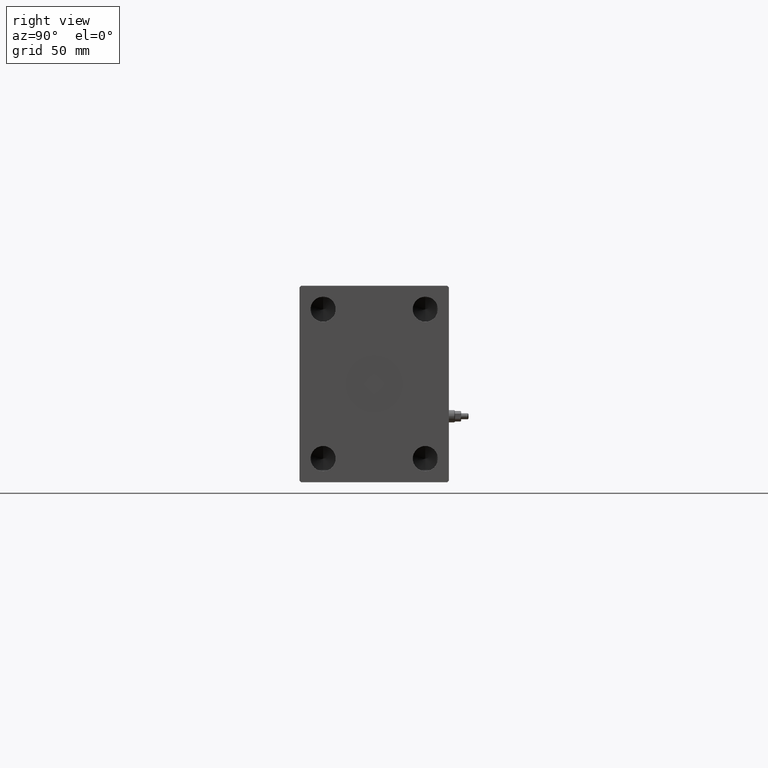
[diagram: clean part render]
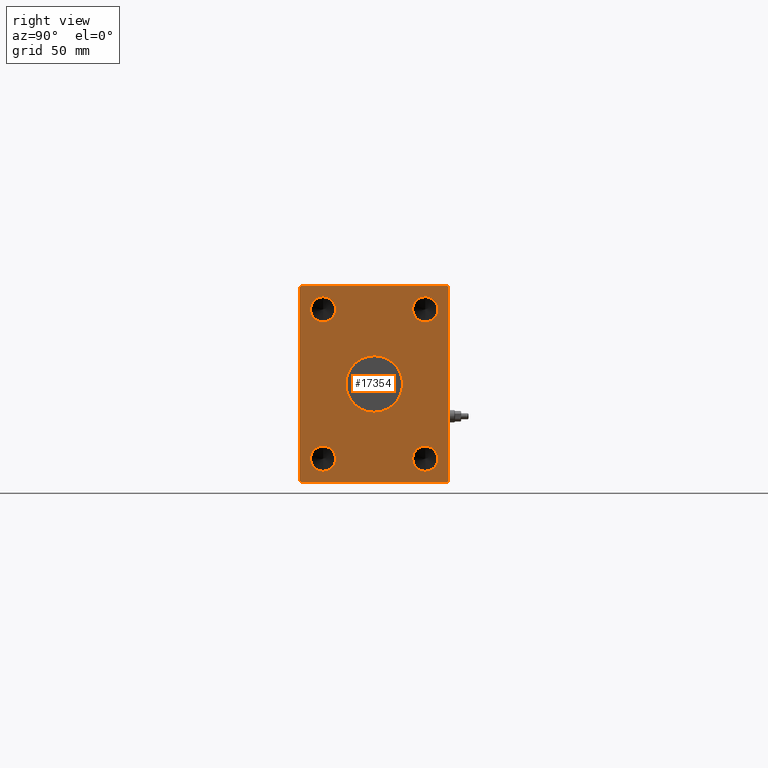
[diagram: same view with one face highlighted and labeled with its STEP entity id]
A machine part, right view. The second image highlights one B-rep face of the part: STEP entity #17354.
In plain terms, the highlighted planar face has unit normal (1, 0, 0).
Its self-contained STEP definition (entity closure, byte-faithful):
#406 = CARTESIAN_POINT ( 'NONE',  ( 381.0000000000000000, 0.000000000000000000, 0.000000000000000000 ) ) ;
#691 = AXIS2_PLACEMENT_3D ( 'NONE', #406, #855, #14365 ) ;
#855 = DIRECTION ( 'NONE',  ( 1.000000000000000000, 0.000000000000000000, 0.000000000000000000 ) ) ;
#1076 = FACE_BOUND ( 'NONE', #23183, .T. ) ;
#1883 = DIRECTION ( 'NONE',  ( 0.000000000000000000, -1.128275431529630729E-16, 1.000000000000000000 ) ) ;
#1987 = ORIENTED_EDGE ( 'NONE', *, *, #13164, .F. ) ;
#2476 = EDGE_CURVE ( 'NONE', #5456, #39823, #37956, .T. ) ;
#2741 = ORIENTED_EDGE ( 'NONE', *, *, #40623, .T. ) ;
#2958 = LINE ( 'NONE', #10051, #43970 ) ;
#3395 = LINE ( 'NONE', #7272, #21130 ) ;
#3420 = DIRECTION ( 'NONE',  ( 1.000000000000000000, 0.000000000000000000, 0.000000000000000000 ) ) ;
#3663 = EDGE_CURVE ( 'NONE', #21795, #34336, #16836, .T. ) ;
#3899 = DIRECTION ( 'NONE',  ( 1.000000000000000000, -0.000000000000000000, -0.000000000000000000 ) ) ;
#4798 = VERTEX_POINT ( 'NONE', #29807 ) ;
#5390 = CARTESIAN_POINT ( 'NONE',  ( 381.0000000000000000, 47.50000000000001421, -61.50000000000001421 ) ) ;
#5456 = VERTEX_POINT ( 'NONE', #12691 ) ;
#5556 = CARTESIAN_POINT ( 'NONE',  ( 381.0000000000000000, 32.50000000000000000, 55.49999999999999289 ) ) ;
#5738 = CIRCLE ( 'NONE', #35783, 7.999999999999992895 ) ;
#6571 = CARTESIAN_POINT ( 'NONE',  ( 381.0000000000000000, -47.49999999999999289, -61.50000000000001421 ) ) ;
#6992 = VERTEX_POINT ( 'NONE', #10488 ) ;
#7145 = CARTESIAN_POINT ( 'NONE',  ( 381.0000000000000000, 32.50000000000000000, 47.50000000000000000 ) ) ;
#7272 = CARTESIAN_POINT ( 'NONE',  ( 381.0000000000000000, 46.50000000000000000, 62.49999999999998579 ) ) ;
#7848 = VERTEX_POINT ( 'NONE', #37698 ) ;
#7942 = CARTESIAN_POINT ( 'NONE',  ( 381.0000000000000000, -47.50000000000001421, 61.49999999999997868 ) ) ;
#8716 = AXIS2_PLACEMENT_3D ( 'NONE', #21110, #35086, #43319 ) ;
#8968 = DIRECTION ( 'NONE',  ( 0.000000000000000000, 0.000000000000000000, -1.000000000000000000 ) ) ;
#9057 = DIRECTION ( 'NONE',  ( 0.000000000000000000, 0.000000000000000000, -1.000000000000000000 ) ) ;
#9275 = AXIS2_PLACEMENT_3D ( 'NONE', #27541, #35090, #28213 ) ;
#9647 = ORIENTED_EDGE ( 'NONE', *, *, #25160, .F. ) ;
#9679 = ORIENTED_EDGE ( 'NONE', *, *, #2476, .T. ) ;
#10051 = CARTESIAN_POINT ( 'NONE',  ( 381.0000000000000000, 46.50000000000000000, -62.50000000000000000 ) ) ;
#10110 = CARTESIAN_POINT ( 'NONE',  ( 381.0000000000000000, -47.50000000000001421, 61.49999999999997868 ) ) ;
#10488 = CARTESIAN_POINT ( 'NONE',  ( 381.0000000000000000, -32.50000000000000000, 39.50000000000000711 ) ) ;
#10498 = VERTEX_POINT ( 'NONE', #14631 ) ;
#10531 = CARTESIAN_POINT ( 'NONE',  ( 381.0000000000000000, -46.50000000000000000, -62.50000000000001421 ) ) ;
#10810 = ORIENTED_EDGE ( 'NONE', *, *, #18203, .F. ) ;
#10916 = CARTESIAN_POINT ( 'NONE',  ( 381.0000000000000000, 0.000000000000000000, 0.000000000000000000 ) ) ;
#11045 = VERTEX_POINT ( 'NONE', #23382 ) ;
#11156 = DIRECTION ( 'NONE',  ( 0.000000000000000000, 1.692413147294445970E-16, -1.000000000000000000 ) ) ;
#12035 = EDGE_CURVE ( 'NONE', #36279, #23219, #28422, .T. ) ;
#12381 = VERTEX_POINT ( 'NONE', #21261 ) ;
#12600 = DIRECTION ( 'NONE',  ( 0.000000000000000000, 0.7071067811865574537, 0.7071067811865376918 ) ) ;
#12691 = CARTESIAN_POINT ( 'NONE',  ( 381.0000000000000000, -47.49999999999999289, -61.50000000000001421 ) ) ;
#12789 = CIRCLE ( 'NONE', #38391, 7.999999999999992895 ) ;
#12828 = VERTEX_POINT ( 'NONE', #15268 ) ;
#13164 = EDGE_CURVE ( 'NONE', #11045, #12381, #5738, .T. ) ;
#13183 = DIRECTION ( 'NONE',  ( 1.000000000000000000, -0.000000000000000000, -0.000000000000000000 ) ) ;
#13763 = DIRECTION ( 'NONE',  ( 0.000000000000000000, 0.000000000000000000, -1.000000000000000000 ) ) ;
#13795 = DIRECTION ( 'NONE',  ( 0.000000000000000000, 0.000000000000000000, -1.000000000000000000 ) ) ;
#13828 = DIRECTION ( 'NONE',  ( 0.000000000000000000, 0.000000000000000000, -1.000000000000000000 ) ) ;
#14249 = EDGE_CURVE ( 'NONE', #33059, #10498, #43374, .T. ) ;
#14365 = DIRECTION ( 'NONE',  ( 0.000000000000000000, 0.000000000000000000, -1.000000000000000000 ) ) ;
#14587 = FACE_OUTER_BOUND ( 'NONE', #26180, .T. ) ;
#14631 = CARTESIAN_POINT ( 'NONE',  ( 381.0000000000000000, 47.50000000000000000, 61.49999999999998579 ) ) ;
#15219 = AXIS2_PLACEMENT_3D ( 'NONE', #34397, #3899, #13763 ) ;
#15268 = CARTESIAN_POINT ( 'NONE',  ( 381.0000000000000000, -32.50000000000000000, 55.49999999999999289 ) ) ;
#15642 = CIRCLE ( 'NONE', #41999, 7.999999999999992895 ) ;
#15703 = VERTEX_POINT ( 'NONE', #5556 ) ;
#15721 = EDGE_LOOP ( 'NONE', ( #40633, #33701 ) ) ;
#15952 = ORIENTED_EDGE ( 'NONE', *, *, #14249, .T. ) ;
#16108 = VECTOR ( 'NONE', #28854, 1000.000000000000000 ) ;
#16145 = CARTESIAN_POINT ( 'NONE',  ( 381.0000000000000000, 32.50000000000000000, 47.50000000000000000 ) ) ;
#16836 = LINE ( 'NONE', #41590, #25974 ) ;
#17006 = DIRECTION ( 'NONE',  ( 0.000000000000000000, 0.000000000000000000, -1.000000000000000000 ) ) ;
#17174 = VECTOR ( 'NONE', #23308, 1000.000000000000114 ) ;
#17332 = EDGE_CURVE ( 'NONE', #7848, #21795, #3395, .T. ) ;
#17354 = ADVANCED_FACE ( 'NONE', ( #35674, #35445, #29252, #1076, #39096, #14587 ), #18918, .T. ) ;
#18174 = EDGE_CURVE ( 'NONE', #34336, #5456, #32244, .T. ) ;
#18203 = EDGE_CURVE ( 'NONE', #4798, #43214, #24065, .T. ) ;
#18499 = AXIS2_PLACEMENT_3D ( 'NONE', #24252, #3420, #38226 ) ;
#18669 = EDGE_CURVE ( 'NONE', #15703, #36090, #21192, .T. ) ;
#18918 = PLANE ( 'NONE',  #691 ) ;
#19258 = DIRECTION ( 'NONE',  ( 1.000000000000000000, -0.000000000000000000, -0.000000000000000000 ) ) ;
#19324 = CARTESIAN_POINT ( 'NONE',  ( 381.0000000000000000, 32.50000000000000000, 39.50000000000000711 ) ) ;
#19664 = LINE ( 'NONE', #22667, #40022 ) ;
#20204 = CARTESIAN_POINT ( 'NONE',  ( 381.0000000000000000, -46.50000000000001421, 62.49999999999997868 ) ) ;
#20250 = CARTESIAN_POINT ( 'NONE',  ( 381.0000000000000000, 46.50000000000000000, -62.50000000000000000 ) ) ;
#20889 = ORIENTED_EDGE ( 'NONE', *, *, #26208, .F. ) ;
#21110 = CARTESIAN_POINT ( 'NONE',  ( 381.0000000000000000, -32.50000000000000000, -47.50000000000000711 ) ) ;
#21130 = VECTOR ( 'NONE', #41880, 1000.000000000000000 ) ;
#21192 = CIRCLE ( 'NONE', #24854, 7.999999999999992895 ) ;
#21261 = CARTESIAN_POINT ( 'NONE',  ( 381.0000000000000000, 32.50000000000000000, -55.49999999999999289 ) ) ;
#21795 = VERTEX_POINT ( 'NONE', #20204 ) ;
#22667 = CARTESIAN_POINT ( 'NONE',  ( 381.0000000000000000, 47.50000000000000000, 61.49999999999998579 ) ) ;
#22906 = CARTESIAN_POINT ( 'NONE',  ( 381.0000000000000000, 0.000000000000000000, -18.00000000000000000 ) ) ;
#23183 = EDGE_LOOP ( 'NONE', ( #41759, #1987 ) ) ;
#23205 = DIRECTION ( 'NONE',  ( 1.000000000000000000, -0.000000000000000000, -0.000000000000000000 ) ) ;
#23219 = VERTEX_POINT ( 'NONE', #26153 ) ;
#23308 = DIRECTION ( 'NONE',  ( 0.000000000000000000, 0.7071067811865451302, -0.7071067811865500152 ) ) ;
#23382 = CARTESIAN_POINT ( 'NONE',  ( 381.0000000000000000, 32.50000000000000000, -39.50000000000000711 ) ) ;
#24065 = CIRCLE ( 'NONE', #31409, 18.00000000000000000 ) ;
#24252 = CARTESIAN_POINT ( 'NONE',  ( 381.0000000000000000, 0.000000000000000000, 0.000000000000000000 ) ) ;
#24854 = AXIS2_PLACEMENT_3D ( 'NONE', #16145, #13183, #9057 ) ;
#25008 = ORIENTED_EDGE ( 'NONE', *, *, #42208, .T. ) ;
#25160 = EDGE_CURVE ( 'NONE', #43214, #4798, #28742, .T. ) ;
#25974 = VECTOR ( 'NONE', #28065, 1000.000000000000114 ) ;
#26153 = CARTESIAN_POINT ( 'NONE',  ( 381.0000000000000000, -32.50000000000000000, -39.50000000000000711 ) ) ;
#26180 = EDGE_LOOP ( 'NONE', ( #38688, #31907, #39983, #37101, #9679, #2741, #25008, #15952 ) ) ;
#26208 = EDGE_CURVE ( 'NONE', #6992, #12828, #12789, .T. ) ;
#27442 = AXIS2_PLACEMENT_3D ( 'NONE', #7145, #38077, #13795 ) ;
#27541 = CARTESIAN_POINT ( 'NONE',  ( 381.0000000000000000, -32.50000000000000000, 47.50000000000000000 ) ) ;
#27585 = DIRECTION ( 'NONE',  ( 1.000000000000000000, -0.000000000000000000, -0.000000000000000000 ) ) ;
#27888 = DIRECTION ( 'NONE',  ( 1.000000000000000000, 0.000000000000000000, 0.000000000000000000 ) ) ;
#28021 = ORIENTED_EDGE ( 'NONE', *, *, #35294, .F. ) ;
#28025 = EDGE_CURVE ( 'NONE', #12381, #11045, #15642, .T. ) ;
#28065 = DIRECTION ( 'NONE',  ( 0.000000000000000000, -0.7071067811865474617, -0.7071067811865474617 ) ) ;
#28213 = DIRECTION ( 'NONE',  ( 0.000000000000000000, 0.000000000000000000, -1.000000000000000000 ) ) ;
#28422 = CIRCLE ( 'NONE', #15219, 8.000000000000000000 ) ;
#28742 = CIRCLE ( 'NONE', #18499, 18.00000000000000000 ) ;
#28854 = DIRECTION ( 'NONE',  ( 0.000000000000000000, 1.000000000000000000, 1.492235248152092278E-16 ) ) ;
#28997 = EDGE_LOOP ( 'NONE', ( #9647, #10810 ) ) ;
#29252 = FACE_BOUND ( 'NONE', #40845, .T. ) ;
#29807 = CARTESIAN_POINT ( 'NONE',  ( 381.0000000000000000, 2.204364238465235428E-15, 18.00000000000000000 ) ) ;
#31409 = AXIS2_PLACEMENT_3D ( 'NONE', #10916, #27888, #31780 ) ;
#31413 = VECTOR ( 'NONE', #1883, 1000.000000000000000 ) ;
#31500 = EDGE_CURVE ( 'NONE', #36090, #15703, #39129, .T. ) ;
#31780 = DIRECTION ( 'NONE',  ( 0.000000000000000000, 0.000000000000000000, -1.000000000000000000 ) ) ;
#31907 = ORIENTED_EDGE ( 'NONE', *, *, #17332, .T. ) ;
#32129 = CIRCLE ( 'NONE', #8716, 8.000000000000000000 ) ;
#32244 = LINE ( 'NONE', #7942, #35780 ) ;
#32423 = ORIENTED_EDGE ( 'NONE', *, *, #12035, .F. ) ;
#33059 = VERTEX_POINT ( 'NONE', #5390 ) ;
#33701 = ORIENTED_EDGE ( 'NONE', *, *, #18669, .F. ) ;
#33709 = EDGE_LOOP ( 'NONE', ( #20889, #28021 ) ) ;
#33752 = CARTESIAN_POINT ( 'NONE',  ( 381.0000000000000000, -32.50000000000000000, 47.50000000000000000 ) ) ;
#34336 = VERTEX_POINT ( 'NONE', #10110 ) ;
#34397 = CARTESIAN_POINT ( 'NONE',  ( 381.0000000000000000, -32.50000000000000000, -47.50000000000000711 ) ) ;
#35086 = DIRECTION ( 'NONE',  ( 1.000000000000000000, -0.000000000000000000, -0.000000000000000000 ) ) ;
#35090 = DIRECTION ( 'NONE',  ( 1.000000000000000000, -0.000000000000000000, -0.000000000000000000 ) ) ;
#35294 = EDGE_CURVE ( 'NONE', #12828, #6992, #39957, .T. ) ;
#35445 = FACE_BOUND ( 'NONE', #15721, .T. ) ;
#35674 = FACE_BOUND ( 'NONE', #28997, .T. ) ;
#35780 = VECTOR ( 'NONE', #11156, 1000.000000000000000 ) ;
#35783 = AXIS2_PLACEMENT_3D ( 'NONE', #38566, #27585, #13828 ) ;
#36090 = VERTEX_POINT ( 'NONE', #19324 ) ;
#36279 = VERTEX_POINT ( 'NONE', #42628 ) ;
#36392 = EDGE_CURVE ( 'NONE', #10498, #7848, #19664, .T. ) ;
#36467 = CARTESIAN_POINT ( 'NONE',  ( 381.0000000000000000, 32.50000000000000000, -47.50000000000000000 ) ) ;
#36646 = DIRECTION ( 'NONE',  ( 0.000000000000000000, -0.7071067811865474617, 0.7071067811865474617 ) ) ;
#37101 = ORIENTED_EDGE ( 'NONE', *, *, #18174, .T. ) ;
#37524 = EDGE_CURVE ( 'NONE', #23219, #36279, #32129, .T. ) ;
#37698 = CARTESIAN_POINT ( 'NONE',  ( 381.0000000000000000, 46.50000000000000000, 62.49999999999998579 ) ) ;
#37956 = LINE ( 'NONE', #6571, #17174 ) ;
#37990 = VERTEX_POINT ( 'NONE', #20250 ) ;
#38077 = DIRECTION ( 'NONE',  ( 1.000000000000000000, -0.000000000000000000, -0.000000000000000000 ) ) ;
#38226 = DIRECTION ( 'NONE',  ( 0.000000000000000000, 0.000000000000000000, -1.000000000000000000 ) ) ;
#38391 = AXIS2_PLACEMENT_3D ( 'NONE', #33752, #23205, #17006 ) ;
#38566 = CARTESIAN_POINT ( 'NONE',  ( 381.0000000000000000, 32.50000000000000000, -47.50000000000000000 ) ) ;
#38688 = ORIENTED_EDGE ( 'NONE', *, *, #36392, .T. ) ;
#39096 = FACE_BOUND ( 'NONE', #33709, .T. ) ;
#39129 = CIRCLE ( 'NONE', #27442, 7.999999999999992895 ) ;
#39823 = VERTEX_POINT ( 'NONE', #41483 ) ;
#39957 = CIRCLE ( 'NONE', #9275, 7.999999999999992895 ) ;
#39983 = ORIENTED_EDGE ( 'NONE', *, *, #3663, .T. ) ;
#40022 = VECTOR ( 'NONE', #36646, 1000.000000000000114 ) ;
#40155 = CARTESIAN_POINT ( 'NONE',  ( 381.0000000000000000, 47.50000000000001421, -61.50000000000001421 ) ) ;
#40623 = EDGE_CURVE ( 'NONE', #39823, #37990, #42620, .T. ) ;
#40633 = ORIENTED_EDGE ( 'NONE', *, *, #31500, .F. ) ;
#40845 = EDGE_LOOP ( 'NONE', ( #32423, #44826 ) ) ;
#41483 = CARTESIAN_POINT ( 'NONE',  ( 381.0000000000000000, -46.50000000000000000, -62.50000000000001421 ) ) ;
#41590 = CARTESIAN_POINT ( 'NONE',  ( 381.0000000000000000, -46.50000000000001421, 62.49999999999997868 ) ) ;
#41759 = ORIENTED_EDGE ( 'NONE', *, *, #28025, .F. ) ;
#41880 = DIRECTION ( 'NONE',  ( 0.000000000000000000, -1.000000000000000000, -7.461176240760460157E-17 ) ) ;
#41999 = AXIS2_PLACEMENT_3D ( 'NONE', #36467, #19258, #8968 ) ;
#42208 = EDGE_CURVE ( 'NONE', #37990, #33059, #2958, .T. ) ;
#42620 = LINE ( 'NONE', #10531, #16108 ) ;
#42628 = CARTESIAN_POINT ( 'NONE',  ( 381.0000000000000000, -32.50000000000000000, -55.50000000000000711 ) ) ;
#43214 = VERTEX_POINT ( 'NONE', #22906 ) ;
#43319 = DIRECTION ( 'NONE',  ( 0.000000000000000000, 0.000000000000000000, -1.000000000000000000 ) ) ;
#43374 = LINE ( 'NONE', #40155, #31413 ) ;
#43970 = VECTOR ( 'NONE', #12600, 999.9999999999998863 ) ;
#44826 = ORIENTED_EDGE ( 'NONE', *, *, #37524, .F. ) ;